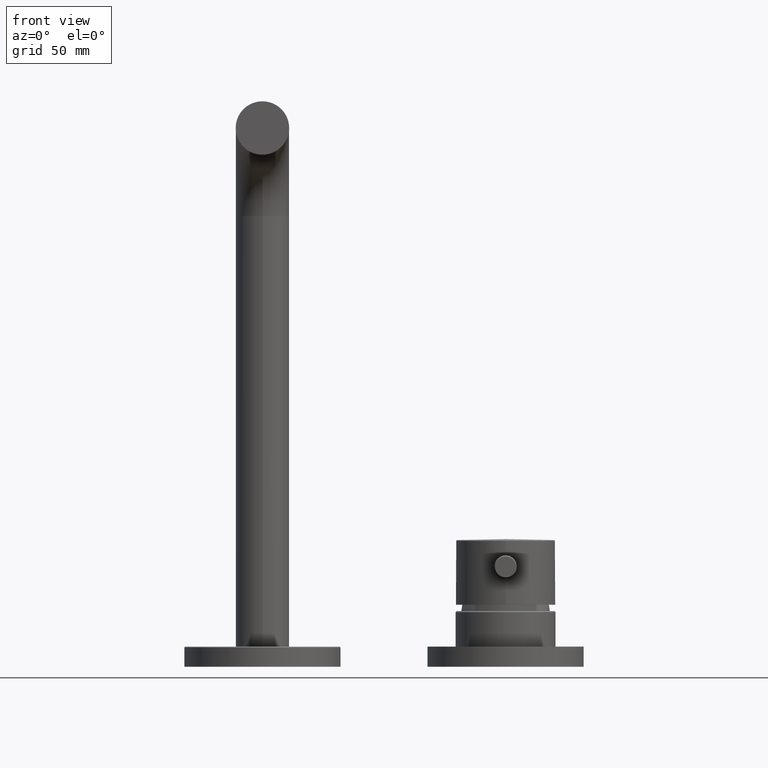
[diagram: clean part render]
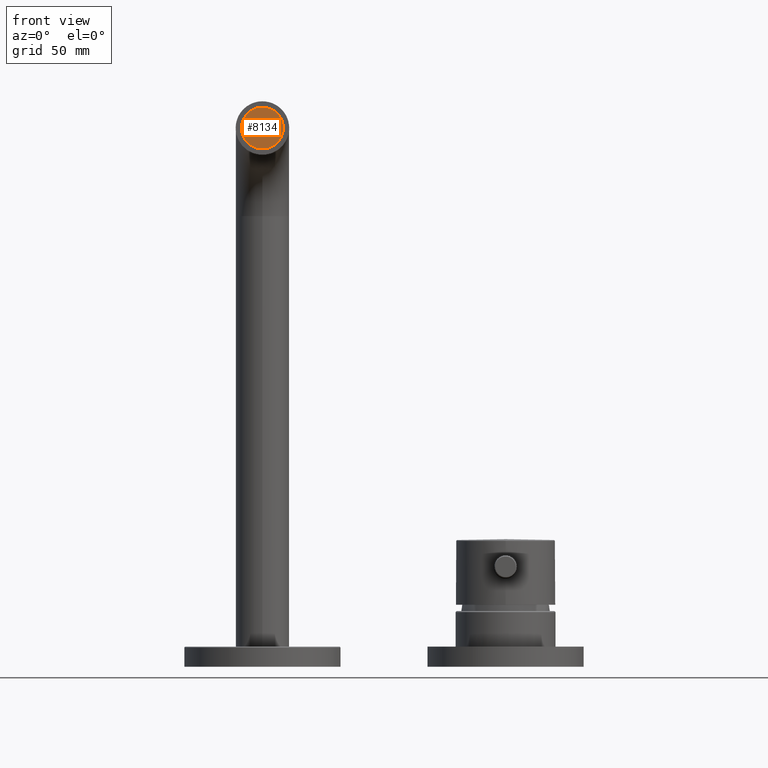
[diagram: same view with one face highlighted and labeled with its STEP entity id]
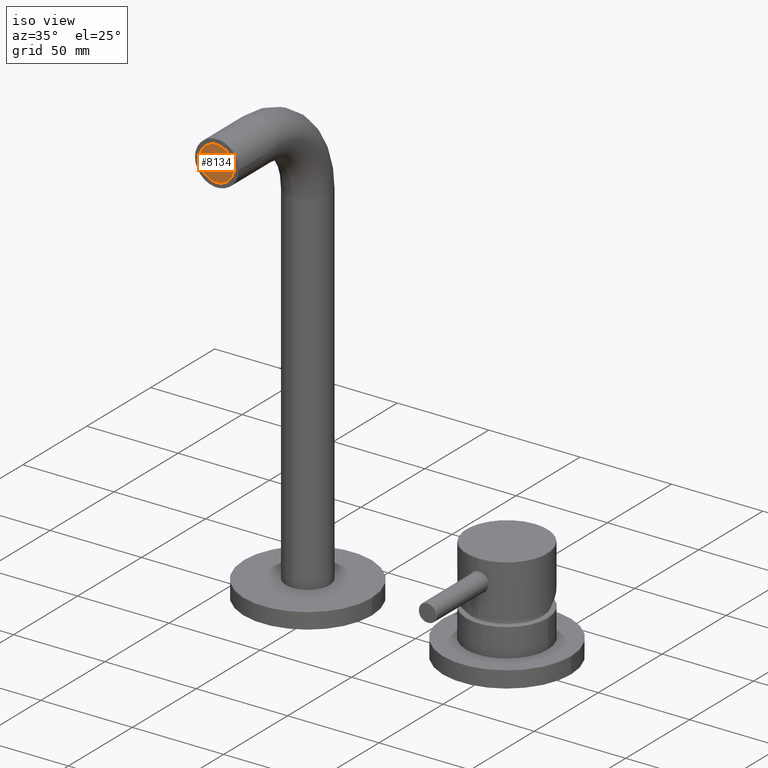
[diagram: same view with one face highlighted and labeled with its STEP entity id]
A machine part, front view. The second image highlights one B-rep face of the part: STEP entity #8134.
A second angle (iso view) of the same face is appended — the face is thin or edge-on in the first view.
In plain terms, the highlighted planar face has unit normal (0, -1, 0).
Its self-contained STEP definition (entity closure, byte-faithful):
#7601=CARTESIAN_POINT('',(-1.09E2,-7.12E1,2.83E2));
#7602=DIRECTION('',(0.E0,1.E0,0.E0));
#7603=DIRECTION('',(1.E0,0.E0,0.E0));
#7604=AXIS2_PLACEMENT_3D('',#7601,#7602,#7603);
#7747=CARTESIAN_POINT('',(-1.09E2,-7.12E1,2.83E2));
#7748=DIRECTION('',(0.E0,-1.E0,0.E0));
#7749=DIRECTION('',(1.E0,0.E0,0.E0));
#7750=AXIS2_PLACEMENT_3D('',#7747,#7748,#7749);
#7760=CARTESIAN_POINT('',(-9.96E1,-7.12E1,2.83E2));
#7761=CARTESIAN_POINT('',(-1.184E2,-7.12E1,2.83E2));
#7762=VERTEX_POINT('',#7760);
#7763=VERTEX_POINT('',#7761);
#8125=CARTESIAN_POINT('',(-1.09E2,-7.12E1,2.83E2));
#8126=DIRECTION('',(0.E0,-1.E0,0.E0));
#8127=DIRECTION('',(-1.E0,0.E0,0.E0));
#8128=AXIS2_PLACEMENT_3D('',#8125,#8126,#8127);
#8129=PLANE('',#8128);
#8130=ORIENTED_EDGE('',*,*,#8112,.F.);
#8131=ORIENTED_EDGE('',*,*,#7805,.T.);
#8132=EDGE_LOOP('',(#8130,#8131));
#8133=FACE_OUTER_BOUND('',#8132,.F.);
#8134=ADVANCED_FACE('',(#8133),#8129,.T.);
#7605=CIRCLE('',#7604,9.4E0);
#7751=CIRCLE('',#7750,9.4E0);
#7805=EDGE_CURVE('',#7762,#7763,#7605,.T.);
#8112=EDGE_CURVE('',#7762,#7763,#7751,.T.);